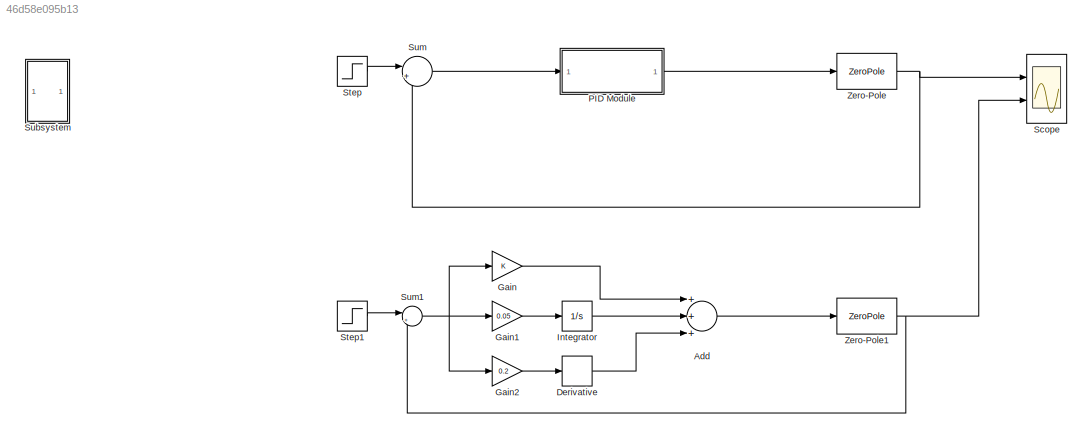
MODEL slx_46d58e095b13
KIND model
BLOCK [Sum] Add
  InputSameDT = off
  Inputs = +++
  OutDataTypeStr = Inherit: Inherit via internal rule
  Ports = [3, 1]
  SaturateOnIntegerOverflow = off
BLOCK [Derivative] Derivative
BLOCK [Gain] Gain
  OutDataTypeStr = Inherit: Inherit via internal rule
  ParamDataTypeStr = Inherit: Inherit via internal rule
  SaturateOnIntegerOverflow = off
BLOCK [Gain] Gain1
  Gain = 0.05
  OutDataTypeStr = Inherit: Inherit via internal rule
  ParamDataTypeStr = Inherit: Inherit via internal rule
  SaturateOnIntegerOverflow = off
BLOCK [Gain] Gain2
  Gain = 0.2
  OutDataTypeStr = Inherit: Inherit via internal rule
  ParamDataTypeStr = Inherit: Inherit via internal rule
  SaturateOnIntegerOverflow = off
BLOCK [Integrator] Integrator
  Ports = [1, 1]
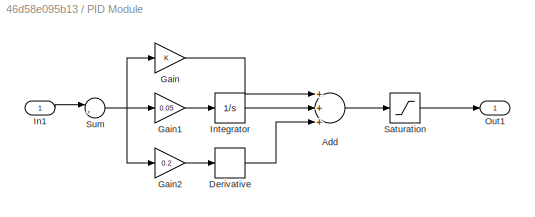
BLOCK [SubSystem] PID Module
  Ports = [1, 1]
  RequestExecContextInheritance = off
BLOCK [Sum] PID Module/Add
  InputSameDT = off
  Inputs = +++
  OutDataTypeStr = Inherit: Inherit via internal rule
  Ports = [3, 1]
  SaturateOnIntegerOverflow = off
BLOCK [Derivative] PID Module/Derivative
BLOCK [Gain] PID Module/Gain
  OutDataTypeStr = Inherit: Inherit via internal rule
  ParamDataTypeStr = Inherit: Inherit via internal rule
  SaturateOnIntegerOverflow = off
BLOCK [Gain] PID Module/Gain1
  Gain = 0.05
  OutDataTypeStr = Inherit: Inherit via internal rule
  ParamDataTypeStr = Inherit: Inherit via internal rule
  SaturateOnIntegerOverflow = off
BLOCK [Gain] PID Module/Gain2
  Gain = 0.2
  OutDataTypeStr = Inherit: Inherit via internal rule
  ParamDataTypeStr = Inherit: Inherit via internal rule
  SaturateOnIntegerOverflow = off
BLOCK [Inport] PID Module/In1
  IconDisplay = Port number
BLOCK [Integrator] PID Module/Integrator
  Ports = [1, 1]
BLOCK [Outport] PID Module/Out1
  IconDisplay = Port number
BLOCK [Saturate] PID Module/Saturation
  InputPortMap = u0
  LowerLimit = -10
  Ports = [1, 1]
  UpperLimit = 10
BLOCK [Sum] PID Module/Sum
  IconShape = round
  InputSameDT = off
  Inputs = |++
  OutDataTypeStr = Inherit: Inherit via internal rule
  Ports = [2, 1]
  SaturateOnIntegerOverflow = off
BLOCK [Scope] Scope
  DataFormat = StructureWithTime
  Floating = off
  LimitDataPoints = off
  NumInputPorts = 2
  Ports = [2]
  SampleTime = 0
  ShowLegends = off
  YMax = 5~5
  YMin = -5~-5
BLOCK [Step] Step
  SampleTime = 0
BLOCK [Step] Step1
  SampleTime = 0
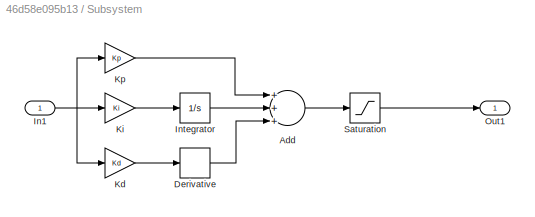
BLOCK [SubSystem] Subsystem
  Ports = [1, 1]
  RequestExecContextInheritance = off
BLOCK [Sum] Subsystem/Add
  InputSameDT = off
  Inputs = +++
  OutDataTypeStr = Inherit: Inherit via internal rule
  Ports = [3, 1]
  SaturateOnIntegerOverflow = off
BLOCK [Derivative] Subsystem/Derivative
BLOCK [Inport] Subsystem/In1
  IconDisplay = Port number
BLOCK [Integrator] Subsystem/Integrator
  Ports = [1, 1]
BLOCK [Gain] Subsystem/Kd
  Gain = Kd
  OutDataTypeStr = Inherit: Inherit via internal rule
  ParamDataTypeStr = Inherit: Inherit via internal rule
  SaturateOnIntegerOverflow = off
BLOCK [Gain] Subsystem/Ki
  Gain = Ki
  OutDataTypeStr = Inherit: Inherit via internal rule
  ParamDataTypeStr = Inherit: Inherit via internal rule
  SaturateOnIntegerOverflow = off
BLOCK [Gain] Subsystem/Kp
  Gain = Kp
  OutDataTypeStr = Inherit: Inherit via internal rule
  ParamDataTypeStr = Inherit: Inherit via internal rule
  SaturateOnIntegerOverflow = off
BLOCK [Outport] Subsystem/Out1
  IconDisplay = Port number
BLOCK [Saturate] Subsystem/Saturation
  InputPortMap = u0
  LowerLimit = sat_lower
  Ports = [1, 1]
  UpperLimit = sat_upper
BLOCK [Sum] Sum
  IconShape = round
  InputSameDT = off
  Inputs = |+-
  OutDataTypeStr = Inherit: Inherit via internal rule
  Ports = [2, 1]
  SaturateOnIntegerOverflow = off
BLOCK [Sum] Sum1
  IconShape = round
  InputSameDT = off
  Inputs = |+-
  OutDataTypeStr = Inherit: Inherit via internal rule
  Ports = [2, 1]
  SaturateOnIntegerOverflow = off
BLOCK [ZeroPole] Zero-Pole
  Poles = [0 -0.5]
  Zeros = []
BLOCK [ZeroPole] Zero-Pole1
  Poles = [0 -0.5]
  Zeros = []
LINE Add:1 -> Zero-Pole1:1
LINE Derivative:1 -> Add:3
LINE Gain1:1 -> Integrator:1
LINE Gain2:1 -> Derivative:1
LINE Gain:1 -> Add:1
LINE Integrator:1 -> Add:2
LINE PID Module/Add:1 -> PID Module/Saturation:1
LINE PID Module/Derivative:1 -> PID Module/Add:3
LINE PID Module/Gain1:1 -> PID Module/Integrator:1
LINE PID Module/Gain2:1 -> PID Module/Derivative:1
LINE PID Module/Gain:1 -> PID Module/Add:1
LINE PID Module/In1:1 -> PID Module/Sum:1
LINE PID Module/Integrator:1 -> PID Module/Add:2
LINE PID Module/Saturation:1 -> PID Module/Out1:1
NET PID Module/Sum:1 -> PID Module/Gain1:1, PID Module/Gain2:1, PID Module/Gain:1
LINE PID Module:1 -> Zero-Pole:1
LINE Step1:1 -> Sum1:1
LINE Step:1 -> Sum:1
LINE Subsystem/Add:1 -> Subsystem/Saturation:1
LINE Subsystem/Derivative:1 -> Subsystem/Add:3
NET Subsystem/In1:1 -> Subsystem/Kd:1, Subsystem/Ki:1, Subsystem/Kp:1
LINE Subsystem/Integrator:1 -> Subsystem/Add:2
LINE Subsystem/Kd:1 -> Subsystem/Derivative:1
LINE Subsystem/Ki:1 -> Subsystem/Integrator:1
LINE Subsystem/Kp:1 -> Subsystem/Add:1
LINE Subsystem/Saturation:1 -> Subsystem/Out1:1
NET Sum1:1 -> Gain1:1, Gain2:1, Gain:1
LINE Sum:1 -> PID Module:1
NET Zero-Pole1:1 -> Scope:2, Sum1:2
NET Zero-Pole:1 -> Scope:1, Sum:2
note: NET lines group one-source signal fan-out (src -> all destinations, sorted); 1:1 wires keep LINE
